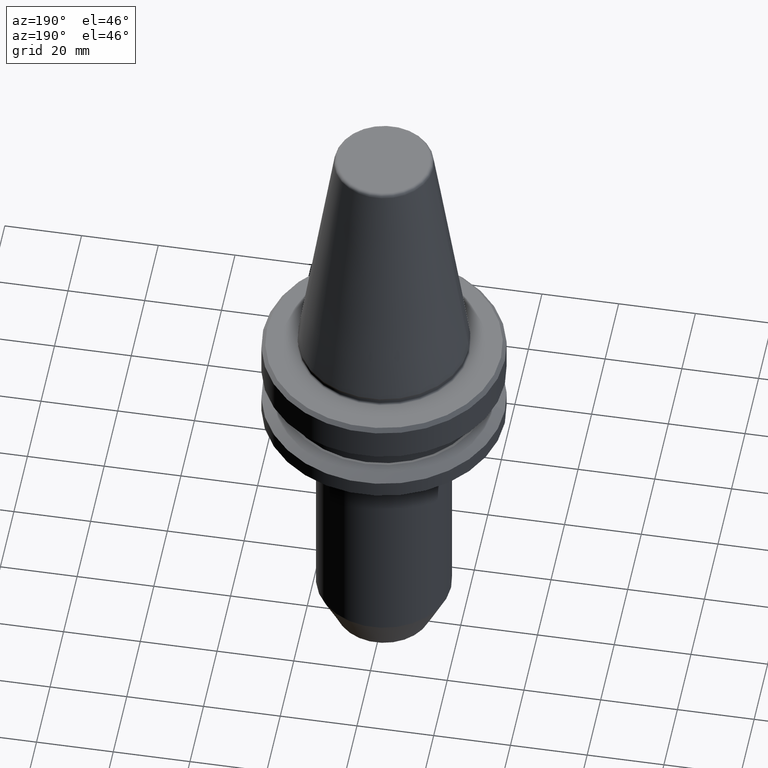
[diagram: clean part render]
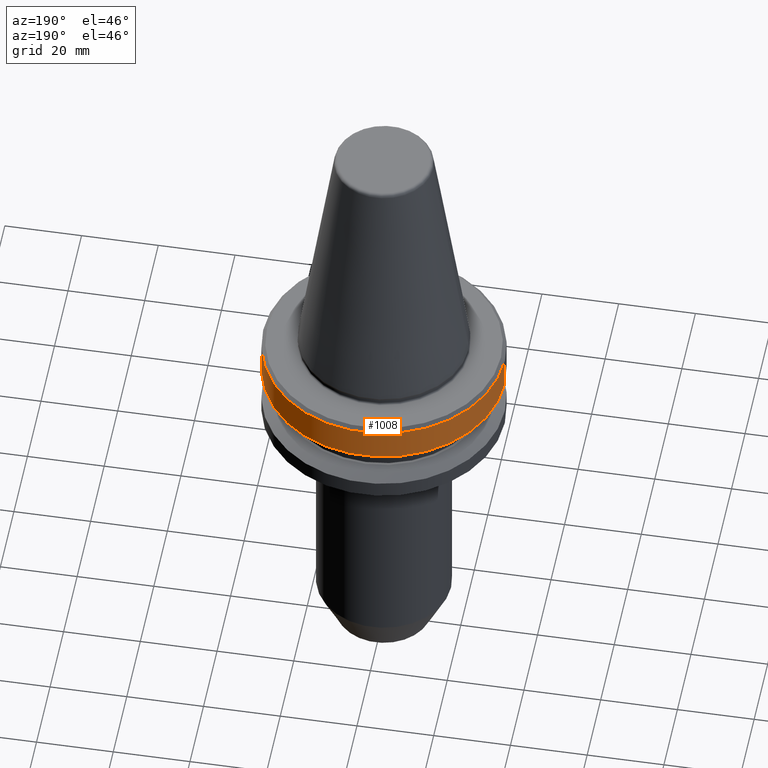
[diagram: same view with one face highlighted and labeled with its STEP entity id]
A machine part, auxiliary view. The second image highlights one B-rep face of the part: STEP entity #1008.
In plain terms, the highlighted cylindrical surface (partial cylindrical patch) has radius 31.5 mm, axis along (-0, -0, 1).
Its self-contained STEP definition (entity closure, byte-faithful):
#22 = CARTESIAN_POINT ( 'NONE',  ( 0.0000000000000000000, 0.0000000000000000000, -2.999999999999780600 ) ) ;
#25 = DIRECTION ( 'NONE',  ( -0.0000000000000000000, -0.0000000000000000000, 1.000000000000000000 ) ) ;
#65 = DIRECTION ( 'NONE',  ( -0.0000000000000000000, -0.0000000000000000000, 1.000000000000000000 ) ) ;
#71 = CARTESIAN_POINT ( 'NONE',  ( 31.49999999999986100, 0.0000000000000000000, 118.8520854233388800 ) ) ;
#89 = AXIS2_PLACEMENT_3D ( 'NONE', #22, #525, #940 ) ;
#91 = CARTESIAN_POINT ( 'NONE',  ( 31.49999999999986100, 0.0000000000000000000, -2.999999999999780600 ) ) ;
#92 = LINE ( 'NONE', #71, #996 ) ;
#113 = VERTEX_POINT ( 'NONE', #543 ) ;
#198 = ORIENTED_EDGE ( 'NONE', *, *, #659, .T. ) ;
#223 = FACE_OUTER_BOUND ( 'NONE', #785, .T. ) ;
#288 = CIRCLE ( 'NONE', #89, 31.49999999999986100 ) ;
#289 = CARTESIAN_POINT ( 'NONE',  ( 0.0000000000000000000, 0.0000000000000000000, 118.8520854233388800 ) ) ;
#311 = CARTESIAN_POINT ( 'NONE',  ( 31.49999999999986100, 0.0000000000000000000, -11.59985799368333500 ) ) ;
#332 = EDGE_CURVE ( 'NONE', #1003, #337, #92, .T. ) ;
#337 = VERTEX_POINT ( 'NONE', #91 ) ;
#492 = VECTOR ( 'NONE', #685, 1000.000000000000000 ) ;
#499 = CARTESIAN_POINT ( 'NONE',  ( -31.49999999999986100, 3.857637417314145300E-015, 118.8520854233388800 ) ) ;
#517 = ORIENTED_EDGE ( 'NONE', *, *, #332, .F. ) ;
#525 = DIRECTION ( 'NONE',  ( -0.0000000000000000000, -0.0000000000000000000, 1.000000000000000000 ) ) ;
#534 = VERTEX_POINT ( 'NONE', #975 ) ;
#542 = CIRCLE ( 'NONE', #583, 31.49999999999986100 ) ;
#543 = CARTESIAN_POINT ( 'NONE',  ( -31.49999999999986100, 3.857637417314145300E-015, -2.999999999999780600 ) ) ;
#583 = AXIS2_PLACEMENT_3D ( 'NONE', #740, #593, #657 ) ;
#585 = ORIENTED_EDGE ( 'NONE', *, *, #947, .F. ) ;
#593 = DIRECTION ( 'NONE',  ( -0.0000000000000000000, -0.0000000000000000000, 1.000000000000000000 ) ) ;
#657 = DIRECTION ( 'NONE',  ( 1.000000000000000000, 0.0000000000000000000, 0.0000000000000000000 ) ) ;
#659 = EDGE_CURVE ( 'NONE', #1003, #534, #542, .T. ) ;
#664 = LINE ( 'NONE', #499, #492 ) ;
#685 = DIRECTION ( 'NONE',  ( -0.0000000000000000000, -0.0000000000000000000, 1.000000000000000000 ) ) ;
#740 = CARTESIAN_POINT ( 'NONE',  ( 0.0000000000000000000, 0.0000000000000000000, -11.59985799368333500 ) ) ;
#761 = EDGE_CURVE ( 'NONE', #534, #113, #664, .T. ) ;
#785 = EDGE_LOOP ( 'NONE', ( #198, #807, #585, #517 ) ) ;
#807 = ORIENTED_EDGE ( 'NONE', *, *, #761, .T. ) ;
#830 = CYLINDRICAL_SURFACE ( 'NONE', #871, 31.49999999999986100 ) ;
#871 = AXIS2_PLACEMENT_3D ( 'NONE', #289, #65, #943 ) ;
#940 = DIRECTION ( 'NONE',  ( 1.000000000000000000, 0.0000000000000000000, 0.0000000000000000000 ) ) ;
#943 = DIRECTION ( 'NONE',  ( 1.000000000000000000, 0.0000000000000000000, 0.0000000000000000000 ) ) ;
#947 = EDGE_CURVE ( 'NONE', #337, #113, #288, .T. ) ;
#975 = CARTESIAN_POINT ( 'NONE',  ( -31.49999999999986100, 3.857637417314145300E-015, -11.59985799368333500 ) ) ;
#996 = VECTOR ( 'NONE', #25, 1000.000000000000000 ) ;
#1003 = VERTEX_POINT ( 'NONE', #311 ) ;
#1008 = ADVANCED_FACE ( 'NONE', ( #223 ), #830, .T. ) ;